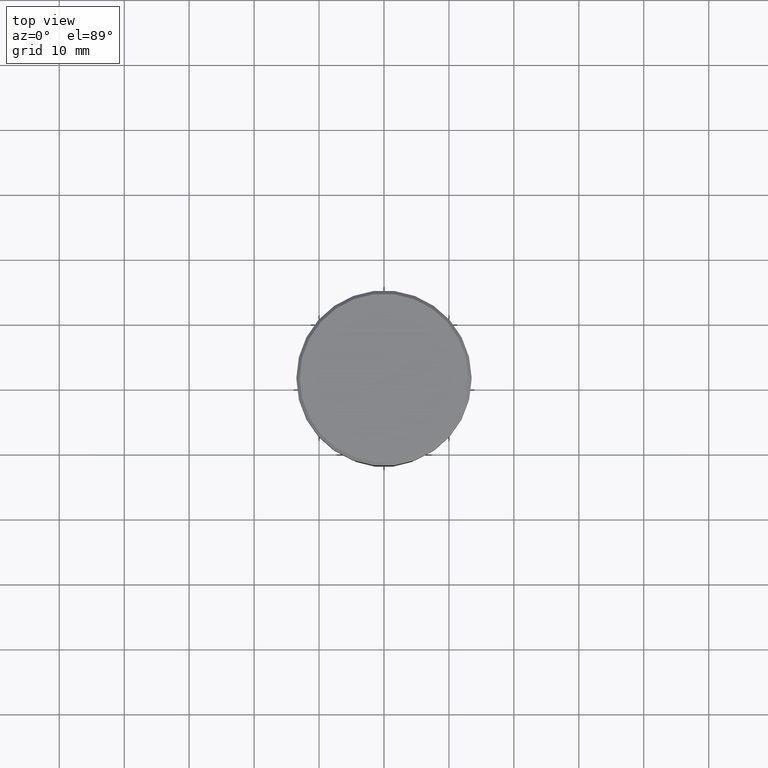
[diagram: clean part render]
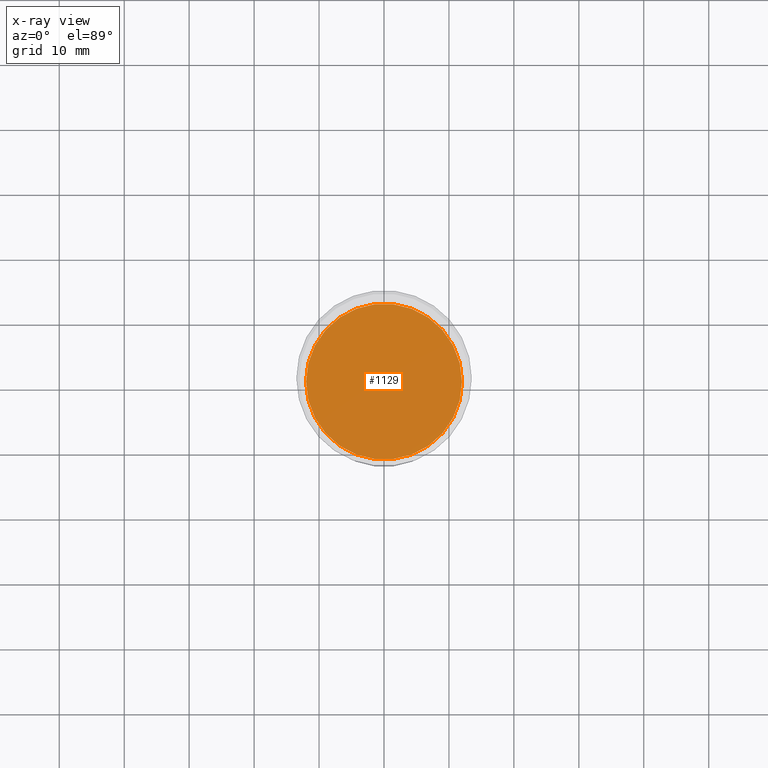
[diagram: x-ray — body ghosted, one internal face saturated and labeled with its STEP entity id]
A machine part, top view, then the same camera in x-ray: the body is ghosted and one INTERNAL B-rep face — a face not visible from any outside direction — is saturated and labeled: STEP entity #1129.
In plain terms, the highlighted planar face has unit normal (0, 0, -1).
Its self-contained STEP definition (entity closure, byte-faithful):
#40 = EDGE_LOOP ( 'NONE', ( #413, #373 ) ) ;
#51 = VERTEX_POINT ( 'NONE', #431 ) ;
#56 = AXIS2_PLACEMENT_3D ( 'NONE', #157, #247, #335 ) ;
#157 = CARTESIAN_POINT ( 'NONE',  ( 0.000000000000000000, 0.000000000000000000, -33.00000000000000000 ) ) ;
#247 = DIRECTION ( 'NONE',  ( 0.000000000000000000, 0.000000000000000000, -1.000000000000000000 ) ) ;
#315 = FACE_OUTER_BOUND ( 'NONE', #40, .T. ) ;
#335 = DIRECTION ( 'NONE',  ( -1.000000000000000000, 0.000000000000000000, 0.000000000000000000 ) ) ;
#339 = DIRECTION ( 'NONE',  ( 0.000000000000000000, 0.000000000000000000, -1.000000000000000000 ) ) ;
#355 = DIRECTION ( 'NONE',  ( -1.000000000000000000, 0.000000000000000000, 0.000000000000000000 ) ) ;
#362 = CARTESIAN_POINT ( 'NONE',  ( 0.000000000000000000, 0.000000000000000000, -33.00000000000000000 ) ) ;
#373 = ORIENTED_EDGE ( 'NONE', *, *, #764, .T. ) ;
#387 = VERTEX_POINT ( 'NONE', #707 ) ;
#403 = PLANE ( 'NONE',  #549 ) ;
#413 = ORIENTED_EDGE ( 'NONE', *, *, #624, .T. ) ;
#431 = CARTESIAN_POINT ( 'NONE',  ( -12.00000000000000178, 1.469576158976824144E-15, -33.00000000000000000 ) ) ;
#496 = AXIS2_PLACEMENT_3D ( 'NONE', #362, #339, #355 ) ;
#549 = AXIS2_PLACEMENT_3D ( 'NONE', #936, #1112, #674 ) ;
#624 = EDGE_CURVE ( 'NONE', #387, #51, #1041, .T. ) ;
#674 = DIRECTION ( 'NONE',  ( -1.000000000000000000, 0.000000000000000000, -0.000000000000000000 ) ) ;
#707 = CARTESIAN_POINT ( 'NONE',  ( 12.00000000000000178, 0.000000000000000000, -33.00000000000000000 ) ) ;
#764 = EDGE_CURVE ( 'NONE', #51, #387, #845, .T. ) ;
#845 = CIRCLE ( 'NONE', #496, 12.00000000000000178 ) ;
#936 = CARTESIAN_POINT ( 'NONE',  ( 0.000000000000000000, 0.000000000000000000, -33.00000000000000000 ) ) ;
#1041 = CIRCLE ( 'NONE', #56, 12.00000000000000178 ) ;
#1112 = DIRECTION ( 'NONE',  ( 0.000000000000000000, 0.000000000000000000, -1.000000000000000000 ) ) ;
#1129 = ADVANCED_FACE ( 'NONE', ( #315 ), #403, .T. ) ;